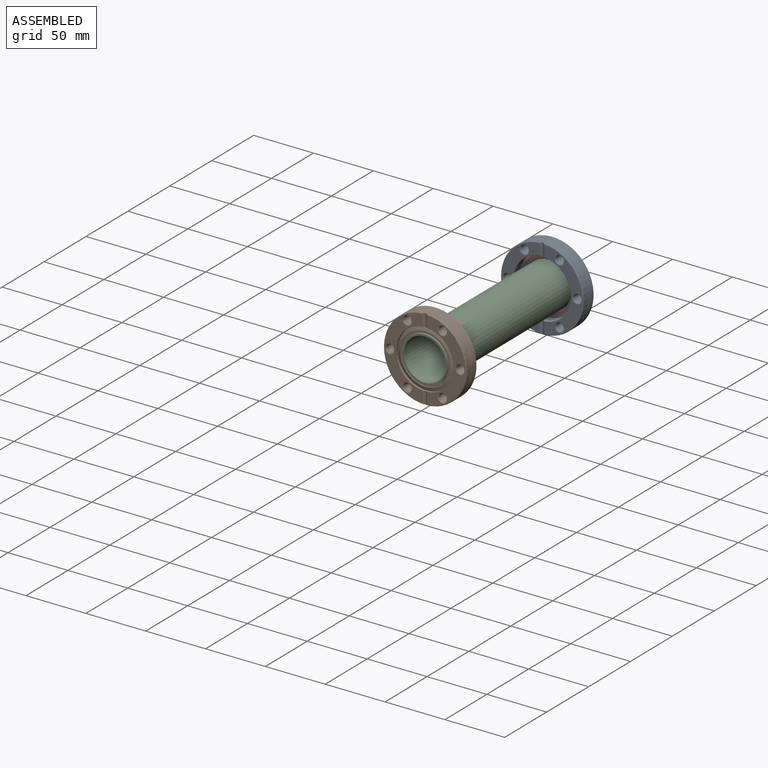
[diagram: assembled view]
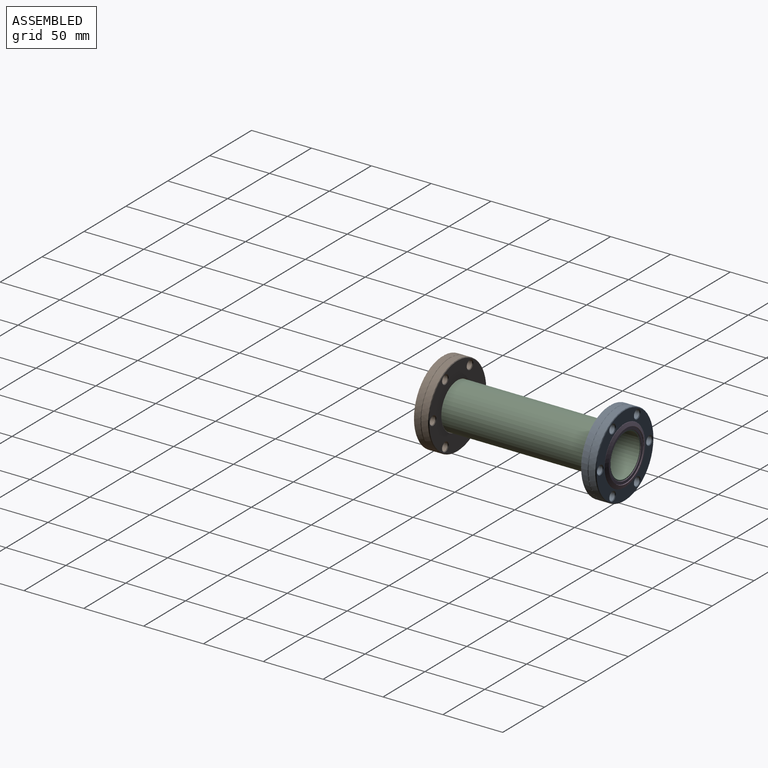
[diagram: assembled view, second angle]
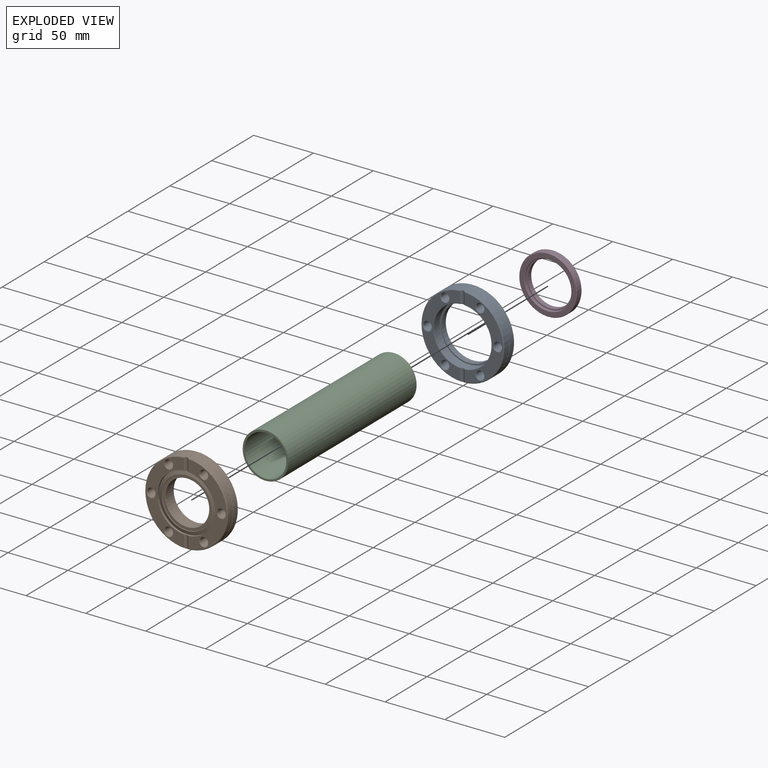
[diagram: exploded view]
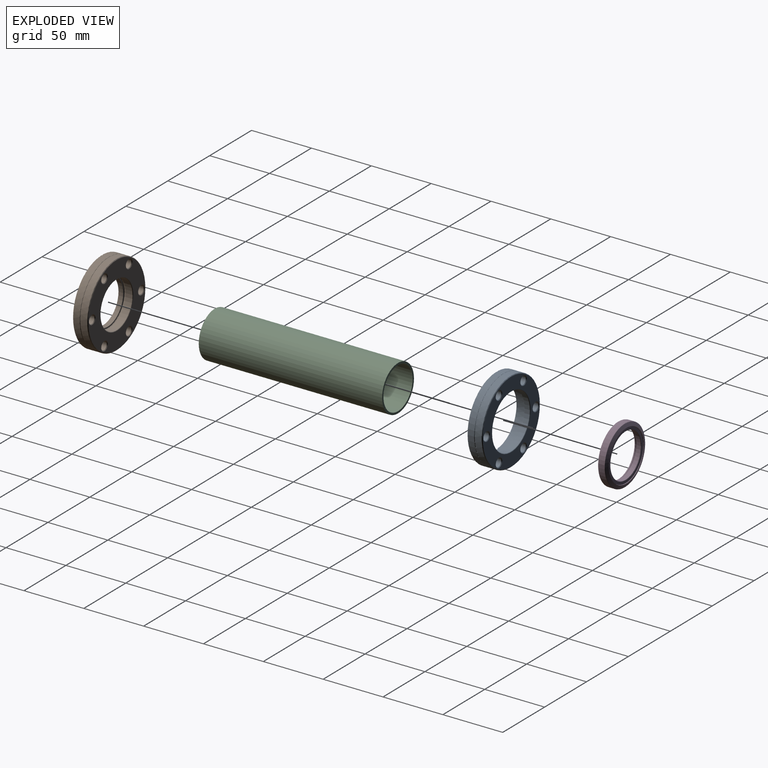
[diagram: exploded view, second angle]
ASSEMBLY  parts=4 mates=3
PART A: 37 faces, bbox 75.3x12.7x75.3 mm
  f0: plane 67.98x32.27mm, normal (0,1,0), area 708.3mm2, adj f1,f7,f24,f27,f30,f31,f32
  f1: cylinder r=2.38mm len=10.42mm, axis (0,0,1), area 41mm2, adj f0,f2,f3,f5,f7,f8,f32,f34
  f2: cone r=34.04mm half-angle=45deg, axis (0,-1,0), area 75.3mm2, adj f1,f3,f8,f31
  f3: plane 67.98x32.27mm, normal (0,1,0), area 708.3mm2, adj f1,f2,f15,f18,f21,f31,f34
  f4: plane 68.07x68.07mm, normal (0,-1,0), area 1678.1mm2, adj f12,f14,f17,f20,f23,f26,f29,f36
  f5: cylinder r=24.16mm len=48.31mm, axis (0,1,0), area 1057.9mm2, adj f1,f31,f32,f34,f35
  f6: cylinder r=34.54mm len=69.09mm, axis (0,-1,0), area 1172.5mm2, adj f11,f12
  f7: cone r=34.04mm half-angle=45deg, axis (0,-1,0), area 75.3mm2, adj f0,f1,f8,f31
  f8: cylinder r=34.54mm len=69.09mm, axis (0,-1,0), area 1172.5mm2, adj f1,f2,f7,f11,f31
  f9: cylinder r=22.61mm len=45.21mm, axis (0,-1,0), area 613.3mm2, adj f33,f36
  f10: plane 47.55x47.55mm, normal (0,1,0), area 134mm2, adj f33,f35
  f11: torus R=34.8mm, axis (0,-1,0), area 229.8mm2, adj f6,f8
  f12: cone r=34.54mm half-angle=45deg, axis (0,1,0), area 154.8mm2, adj f4,f6
  f13: cylinder r=3.37mm len=11.68mm, axis (0,-1,0), area 247.1mm2, adj f14,f15
  f14: cone r=3.87mm half-angle=45deg, axis (0,-1,0), area 16.3mm2, adj f4,f13
  f15: cone r=3.37mm half-angle=45deg, axis (0,1,0), area 16.3mm2, adj f3,f13
  f16: cylinder r=3.37mm len=11.68mm, axis (0,-1,0), area 247.1mm2, adj f17,f18
  f17: cone r=3.87mm half-angle=45deg, axis (0,-1,0), area 16.3mm2, adj f4,f16
  f18: cone r=3.37mm half-angle=45deg, axis (0,1,0), area 16.3mm2, adj f3,f16
  f19: cylinder r=3.37mm len=11.68mm, axis (0,-1,0), area 247.1mm2, adj f20,f21
  f20: cone r=3.87mm half-angle=45deg, axis (0,-1,0), area 16.3mm2, adj f4,f19
  f21: cone r=3.37mm half-angle=45deg, axis (0,1,0), area 16.3mm2, adj f3,f19
  f22: cylinder r=3.37mm len=11.68mm, axis (0,-1,0), area 247.1mm2, adj f23,f24
  f23: cone r=3.87mm half-angle=45deg, axis (0,-1,0), area 16.3mm2, adj f4,f22
  f24: cone r=3.37mm half-angle=45deg, axis (0,1,0), area 16.3mm2, adj f0,f22
  f25: cylinder r=3.37mm len=11.68mm, axis (0,-1,0), area 247.1mm2, adj f26,f27
  f26: cone r=3.87mm half-angle=45deg, axis (0,-1,0), area 16.3mm2, adj f4,f25
  f27: cone r=3.37mm half-angle=45deg, axis (0,1,0), area 16.3mm2, adj f0,f25
  f28: cylinder r=3.37mm len=11.68mm, axis (0,-1,0), area 247.1mm2, adj f29,f30
  f29: cone r=3.87mm half-angle=45deg, axis (0,-1,0), area 16.3mm2, adj f4,f28
  f30: cone r=3.37mm half-angle=45deg, axis (0,1,0), area 16.3mm2, adj f0,f28
  f31: cylinder r=2.38mm len=10.42mm, axis (0,0,-1), area 41mm2, adj f0,f2,f3,f5,f7,f8,f32,f34
  f32: torus R=24.41mm, axis (0,1,0), area 29.1mm2, adj f0,f1,f5,f31
  f33: torus R=22.86mm, axis (0,-1,0), area 56.9mm2, adj f9,f10
  f34: torus R=24.41mm, axis (0,1,0), area 29.1mm2, adj f1,f3,f5,f31
  f35: torus R=23.77mm, axis (0,-1,0), area 90.3mm2, adj f5,f10
  f36: torus R=23.11mm, axis (0,1,0), area 114.3mm2, adj f4,f9
PART B: 41 faces, bbox 75.3x12.7x75.3 mm
  f0: cylinder r=34.54mm len=69.09mm, axis (0,-1,0), area 1172.5mm2, adj f1,f2,f5,f11,f36
  f1: cylinder r=2.38mm len=10.46mm, axis (0,0,1), area 41.3mm2, adj f0,f2,f3,f4,f5,f6
  f2: cone r=34.54mm half-angle=45deg, axis (0,1,0), area 75.3mm2, adj f0,f1,f3,f11
  f3: plane 67.98x32.27mm, normal (0,-1,0), area 728.6mm2, adj f1,f2,f4,f11,f12,f15,f18
  f4: cylinder r=24.13mm len=48.26mm, axis (0,1,0), area 275.3mm2, adj f1,f3,f6,f11,f38
  f5: cone r=34.54mm half-angle=45deg, axis (0,1,0), area 75.3mm2, adj f0,f1,f6,f11
  f6: plane 67.98x32.27mm, normal (0,-1,0), area 728.6mm2, adj f1,f4,f5,f11,f21,f24,f27
  f7: cylinder r=34.54mm len=69.09mm, axis (0,-1,0), area 1172.5mm2, adj f33,f36
  f8: plane 68.07x68.07mm, normal (0,1,0), area 2139.2mm2, adj f13,f16,f19,f22,f25,f28,f30,f33
  f9: cylinder r=19.18mm len=38.35mm, axis (0,1,0), area 696.9mm2, adj f30,f35
  f10: cylinder r=18.29mm len=36.58mm, axis (0,-1,0), area 423.2mm2, adj f31,f32
  f11: cylinder r=2.38mm len=10.46mm, axis (0,0,-1), area 41.3mm2, adj f0,f2,f3,f4,f5,f6
  f12: cone r=3.87mm half-angle=45deg, axis (0,-1,0), area 16.3mm2, adj f3,f14
  f13: cone r=3.37mm half-angle=45deg, axis (0,1,0), area 16.3mm2, adj f8,f14
  f14: cylinder r=3.37mm len=11.68mm, axis (0,-1,0), area 247.1mm2, adj f12,f13
  f15: cone r=3.87mm half-angle=45deg, axis (0,-1,0), area 16.3mm2, adj f3,f17
  f16: cone r=3.37mm half-angle=45deg, axis (0,1,0), area 16.3mm2, adj f8,f17
  f17: cylinder r=3.37mm len=11.68mm, axis (0,-1,0), area 247.1mm2, adj f15,f16
  f18: cone r=3.87mm half-angle=45deg, axis (0,-1,0), area 16.3mm2, adj f3,f20
  f19: cone r=3.37mm half-angle=45deg, axis (0,1,0), area 16.3mm2, adj f8,f20
  f20: cylinder r=3.37mm len=11.68mm, axis (0,-1,0), area 247.1mm2, adj f18,f19
  f21: cone r=3.87mm half-angle=45deg, axis (0,-1,0), area 16.3mm2, adj f6,f23
  f22: cone r=3.37mm half-angle=45deg, axis (0,1,0), area 16.3mm2, adj f8,f23
  f23: cylinder r=3.37mm len=11.68mm, axis (0,-1,0), area 247.1mm2, adj f21,f22
  f24: cone r=3.87mm half-angle=45deg, axis (0,-1,0), area 16.3mm2, adj f6,f26
  f25: cone r=3.37mm half-angle=45deg, axis (0,1,0), area 16.3mm2, adj f8,f26
  f26: cylinder r=3.37mm len=11.68mm, axis (0,-1,0), area 247.1mm2, adj f24,f25
  f27: cone r=3.87mm half-angle=45deg, axis (0,-1,0), area 16.3mm2, adj f6,f29
  f28: cone r=3.37mm half-angle=45deg, axis (0,1,0), area 16.3mm2, adj f8,f29
  f29: cylinder r=3.37mm len=11.68mm, axis (0,-1,0), area 247.1mm2, adj f27,f28
  f30: torus R=19.69mm, axis (0,1,0), area 97.1mm2, adj f8,f9
  f31: torus R=18.49mm, axis (0,-1,0), area 36.8mm2, adj f10,f40
  f32: torus R=18.54mm, axis (0,1,0), area 46.1mm2, adj f10,f39
  f33: cone r=34.04mm half-angle=45deg, axis (0,-1,0), area 154.8mm2, adj f7,f8
  f34: torus R=19.18mm, axis (0,-1,0), area 99.1mm2, adj f35,f40
  f35: cone r=19.18mm half-angle=32deg, axis (0,-1,0), area 74.1mm2, adj f9,f34
  f36: torus R=34.8mm, axis (0,-1,0), area 229.8mm2, adj f0,f7
  f37: cone r=20.96mm half-angle=20deg, axis (0,-1,0), area 70.9mm2, adj f38,f39
  f38: cone r=24.13mm half-angle=70deg, axis (0,1,0), area 478.6mm2, adj f4,f37
  f39: plane 41.54x41.54mm, normal (0,-1,0), area 275.2mm2, adj f32,f37
  f40: plane 38.35x38.35mm, normal (0,1,0), area 81.2mm2, adj f31,f34
PART C: 4 faces, bbox 38.1x153.2x38.1 mm
  f0: cylinder r=19.05mm len=153.16mm, axis (0,-1,0), area 18332.7mm2, adj f2,f3
  f1: cylinder r=17.4mm len=153.16mm, axis (0,-1,0), area 16743.8mm2, adj f2,f3
  f2: plane 38.1x38.1mm, normal (0,1,0), area 189.1mm2, adj f0,f1
  f3: plane 38.1x38.1mm, normal (0,-1,0), area 189.1mm2, adj f0,f1
PART D: 15 faces, bbox 52.2x7x52.2 mm
  f0: cylinder r=19.3mm len=38.61mm, axis (0,1,0), area 85.3mm2, adj f2,f14
  f1: cylinder r=24.1mm len=48.21mm, axis (0,-1,0), area 766.9mm2, adj f8,f9
  f2: cone r=19.3mm half-angle=32deg, axis (0,-1,0), area 74.6mm2, adj f0,f3
  f3: torus R=19.3mm, axis (0,-1,0), area 99.8mm2, adj f2,f4
  f4: plane 38.61x38.61mm, normal (0,1,0), area 96.5mm2, adj f3,f5
  f5: torus R=18.49mm, axis (0,-1,0), area 36.8mm2, adj f4,f13
  f6: torus R=18.54mm, axis (0,1,0), area 46.1mm2, adj f11,f13
  f7: plane 47.19x47.19mm, normal (0,1,0), area 516.1mm2, adj f8,f14
  f8: torus R=23.6mm, axis (0,1,0), area 119.9mm2, adj f1,f7
  f9: torus R=23.72mm, axis (0,1,0), area 70.2mm2, adj f1,f12
  f10: cone r=20.96mm half-angle=20deg, axis (0,-1,0), area 70.9mm2, adj f11,f12
  f11: plane 41.54x41.54mm, normal (0,-1,0), area 275.2mm2, adj f6,f10
  f12: cone r=24.13mm half-angle=70deg, axis (0,1,0), area 434.3mm2, adj f9,f10
  f13: cylinder r=18.29mm len=36.58mm, axis (0,-1,0), area 426.1mm2, adj f5,f6
  f14: cone r=19.81mm half-angle=45deg, axis (0,1,0), area 88.3mm2, adj f0,f7
PLACE A rot(axis=(1,0,0),180deg) t=(0,50.69,0)mm
PLACE B t=(0,-89.01,0)mm
PLACE C at identity
PLACE D rot(axis=(1,0,0),180deg) t=(0,54.83,0)mm
MATE fastened D.f0 <-> C.f0  axis (0,1,0) through (0,55.7,0)mm
MATE fastened B.f9 <-> C.f0  axis (0,1,0) through (0,-83.17,0)mm
MATE fastened D.f1 <-> A.f5  axis (0,1,0) through (0,54.37,0)mm
